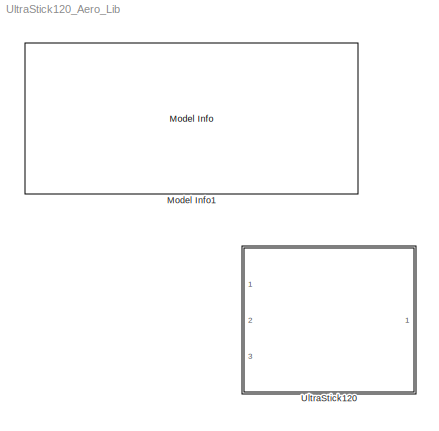
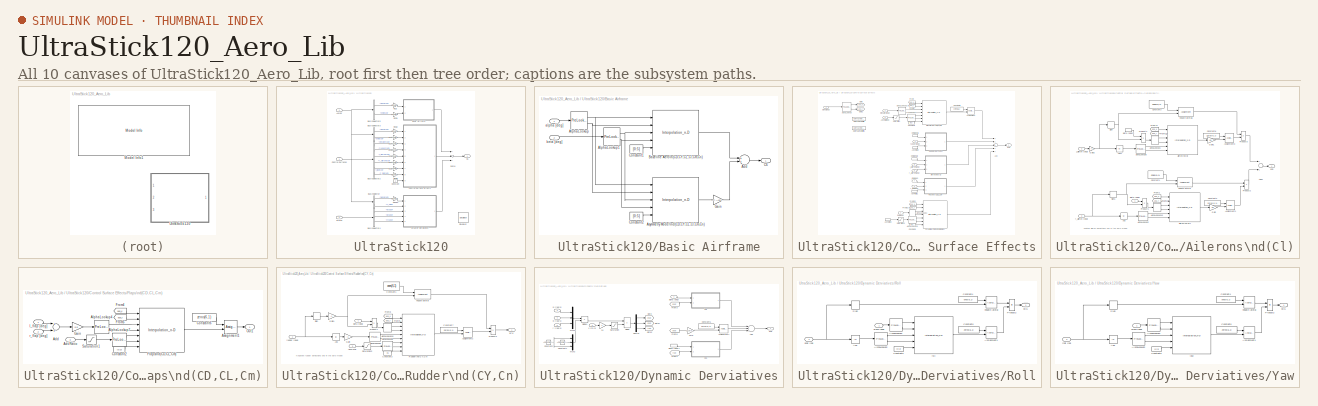
[diagram: thumbnail index - all 10 canvases of the model, root first then tree order]
MODEL UltraStick120_Aero_Lib
KIND library
BLOCK [Reference] Model Info1  REF=simulink/Model-Wide\nUtilities/Model Info
  BlockCM = None
  DisplayStringWithTags = MODEL INFORMATION\nFASER Aerodynamic Model Library\n\nUniversity of Minnesota\nAerospace Engineering and Mechanics\nCopyright 2011 Regents of the University of Minnesota. All rights reserved.\n\n== SVN Info ==\nLast modified by %<LastModifiedBy> on %<LastModificationDate>
  Frame = on
  HorizontalTextAlignment = Left
  InitialBlockCM = None
  LeftAlignmentValue = 0.02
  MaskDisplayString = MODEL INFORMATION\\nFASER Aerodynamic Model Library\\n\\nUniversity of Minnesota\\nAerospace Engineering and Mechanics\\nCopyright 2011 Regents of the University of Minnesota. All rights reserved.\\n\\n== SVN Info ==\\nLast modified by hpfifer on 27-Feb-2014 15:03:57
  Ports = []
  SID = 297
  SourceBlock = simulink/Model-Wide\nUtilities/Model Info
  SourceBlockDiagram = UltraStick120_Aero_Lib
  SourceType = CMBlock
  TagMaxNumber = 20
BLOCK [SubSystem] UltraStick120
  FunctionWithSeparateData = off
  MaskHideContents = off
  MinAlgLoopOccurrences = off
  Opaque = off
  Ports = [3, 1]
  PropExecContextOutsideSubsystem = off
  RTWSystemCode = Auto
  RequestExecContextInheritance = off
  SID = 170
BLOCK [Inport] UltraStick120/AuxVar
  IconDisplay = Port number
  Port = 3
  SID = 443
BLOCK [SubSystem] UltraStick120/Basic Airframe
  FunctionWithSeparateData = off
  MaskHideContents = off
  MinAlgLoopOccurrences = off
  Opaque = off
  Ports = [2, 1]
  PropExecContextOutsideSubsystem = off
  RTWSystemCode = Auto
  RequestExecContextInheritance = off
  SID = 173
BLOCK [Sum] UltraStick120/Basic Airframe/Add
  InputSameDT = off
  OutDataTypeStr = Inherit: Inherit via internal rule
  Ports = [2, 1]
  SID = 437
  SaturateOnIntegerOverflow = off
BLOCK [PreLookup] UltraStick120/Basic Airframe/AlphaLookup
  BeginIndexSearchUsingPreviousIndexResult = on
  BreakpointsData = AC.Aero.C6_bas.alpha
  ExtrapMethod = Linear
  IndexSearchMethod = Linear search
  InputPortMap = u0
  Ports = [1, 2]
  SID = 176
BLOCK [PreLookup] UltraStick120/Basic Airframe/AlphaLookup1
  BeginIndexSearchUsingPreviousIndexResult = on
  BreakpointsData = AC.Aero.C6_bas.beta
  ExtrapMethod = Linear
  IndexSearchMethod = Linear search
  InputPortMap = u0
  Ports = [1, 2]
  SID = 177
BLOCK [Interpolation_n-D] UltraStick120/Basic Airframe/Asymmetry Model\nd(CD,CY,CL,Cl,Cm,Cn)
  InputPortMap = u0,u1,u2,u3,u4
  NumSelectionDims = 1
  NumberOfTableDimensions = 3
  Ports = [5, 1]
  SID = 435
  Table = AC.Aero.dC6_asym.data
BLOCK [Interpolation_n-D] UltraStick120/Basic Airframe/Baseline Aero\n(CD,CY,CL,Cl,Cm,Cn)
  InputPortMap = u0,u1,u2,u3,u4
  NumSelectionDims = 1
  NumberOfTableDimensions = 3
  Ports = [5, 1]
  SID = 179
  Table = AC.Aero.C6_bas.data
BLOCK [Outport] UltraStick120/Basic Airframe/C6
  IconDisplay = Port number
  SID = 180
BLOCK [Constant] UltraStick120/Basic Airframe/Constant1
  OutDataTypeStr = uint32
  SID = 178
  Value = [0:5]
BLOCK [Constant] UltraStick120/Basic Airframe/Constant2
  OutDataTypeStr = uint32
  SID = 436
  Value = [0:5]
BLOCK [Gain] UltraStick120/Basic Airframe/Gain
  Gain = AC.Aero.AsymmetryOn
  OutDataTypeStr = Inherit: Inherit via internal rule
  ParamDataTypeStr = Inherit: Inherit via internal rule
  SID = 438
  SaturateOnIntegerOverflow = off
BLOCK [Inport] UltraStick120/Basic Airframe/alpha [deg]
  IconDisplay = Port number
  SID = 174
BLOCK [Inport] UltraStick120/Basic Airframe/beta [deg]
  IconDisplay = Port number
  Port = 2
  SID = 175
BLOCK [BusSelector] UltraStick120/Bus\nSelector
  OutputSignals = WindAxesParam.alpha [rad],WindAxesParam.V_s [m/s]
  Ports = [1, 2]
  SID = 442
BLOCK [BusSelector] UltraStick120/Bus\nSelector2
  OutputSignals = elevator [rad],rudder [rad],l_aileron [rad],r_aileron [rad],l_flap [rad],r_flap [rad]
  Ports = [1, 6]
  SID = 182
BLOCK [BusSelector] UltraStick120/Bus\nSelector3
  OutputSignals = WindAxesParam.alpha [rad],WindAxesParam.beta [rad]
  Ports = [1, 2]
  SID = 183
BLOCK [BusSelector] UltraStick120/Bus\nSelector4
  OutputSignals = AngVel [rad/s].p [rad/s],AngVel [rad/s].q [rad/s],AngVel [rad/s].r [rad/s]
  Ports = [1, 3]
  SID = 184
BLOCK [BusSelector] UltraStick120/Bus\nSelector5
  OutputSignals = WindAxesParam.alpha [rad],WindAxesParam.beta [rad]
  Ports = [1, 2]
  SID = 441
BLOCK [Outport] UltraStick120/C6
  IconDisplay = Port number
  SID = 295
BLOCK [Constant] UltraStick120/Constant
  SID = 185
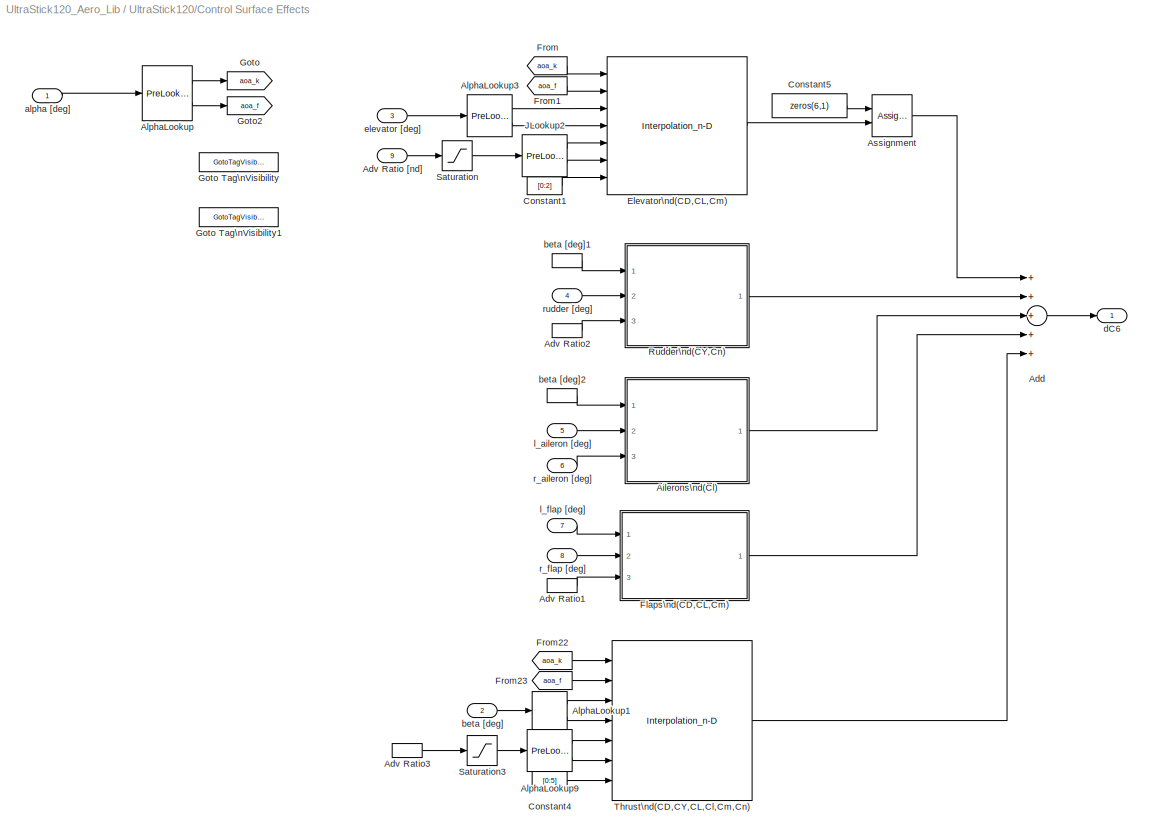
BLOCK [SubSystem] UltraStick120/Control Surface Effects
  FunctionWithSeparateData = off
  MaskHideContents = off
  MinAlgLoopOccurrences = off
  Opaque = off
  Ports = [9, 1]
  PropExecContextOutsideSubsystem = off
  RTWSystemCode = Auto
  RequestExecContextInheritance = off
  SID = 186
BLOCK [Sum] UltraStick120/Control Surface Effects/Add
  InputSameDT = off
  Inputs = +++++
  OutDataTypeStr = Inherit: Inherit via internal rule
  Ports = [5, 1]
  SID = 194
  SaturateOnIntegerOverflow = off
BLOCK [Inport] UltraStick120/Control Surface Effects/Adv Ratio [nd]
  IconDisplay = Port number
  Port = 9
  SID = 193
BLOCK [InportShadow] UltraStick120/Control Surface Effects/Adv Ratio1
  IconDisplay = Port number
  LatchByDelayingOutsideSignal = off
  LatchInputForFeedbackSignals = off
  Port = 9
  SID = 195
BLOCK [InportShadow] UltraStick120/Control Surface Effects/Adv Ratio2
  IconDisplay = Port number
  LatchByDelayingOutsideSignal = off
  LatchInputForFeedbackSignals = off
  Port = 9
  SID = 196
BLOCK [InportShadow] UltraStick120/Control Surface Effects/Adv Ratio3
  IconDisplay = Port number
  LatchByDelayingOutsideSignal = off
  LatchInputForFeedbackSignals = off
  Port = 9
  SID = 197
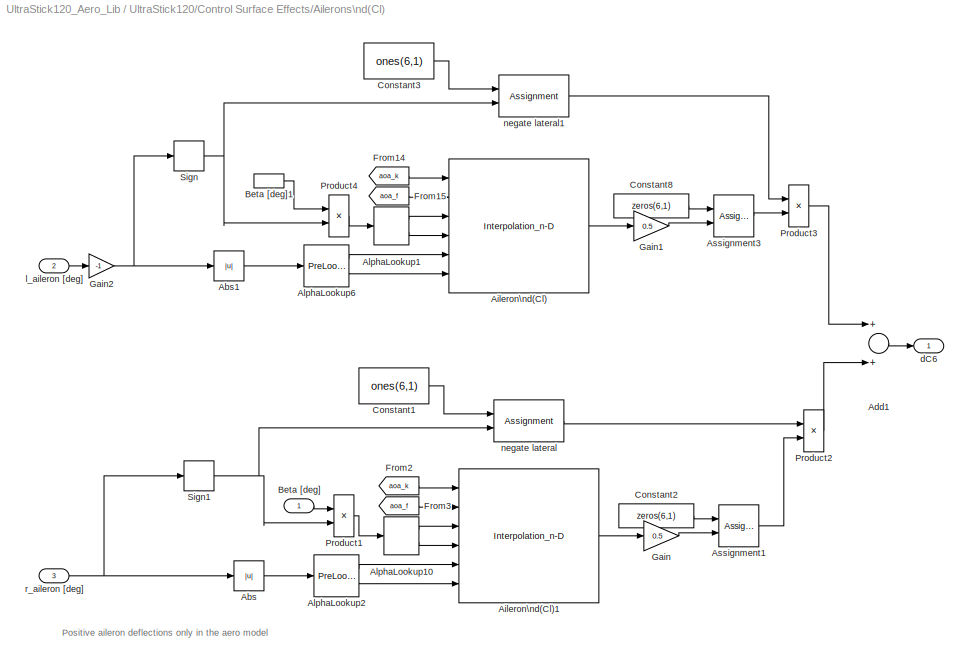
BLOCK [SubSystem] UltraStick120/Control Surface Effects/Ailerons\nd(Cl)
  FunctionWithSeparateData = off
  MaskHideContents = off
  MinAlgLoopOccurrences = off
  Opaque = off
  Ports = [3, 1]
  PropExecContextOutsideSubsystem = off
  RTWSystemCode = Auto
  RequestExecContextInheritance = off
  SID = 330
BLOCK [Abs] UltraStick120/Control Surface Effects/Ailerons\nd(Cl)/Abs
  SID = 334
  SaturateOnIntegerOverflow = off
BLOCK [Abs] UltraStick120/Control Surface Effects/Ailerons\nd(Cl)/Abs1
  SID = 359
  SaturateOnIntegerOverflow = off
BLOCK [Sum] UltraStick120/Control Surface Effects/Ailerons\nd(Cl)/Add1
  InputSameDT = off
  OutDataTypeStr = Inherit: Inherit via internal rule
  Ports = [2, 1]
  SID = 326
  SaturateOnIntegerOverflow = off
BLOCK [Interpolation_n-D] UltraStick120/Control Surface Effects/Ailerons\nd(Cl)/Aileron\nd(Cl)
  InputPortMap = u0,u1,u2,u3,u4,u5
  NumberOfTableDimensions = 3
  Ports = [6, 1]
  SID = 198
  Table = AC.Aero.dC1_ail.data
BLOCK [Interpolation_n-D] UltraStick120/Control Surface Effects/Ailerons\nd(Cl)/Aileron\nd(Cl)1
  InputPortMap = u0,u1,u2,u3,u4,u5
  NumberOfTableDimensions = 3
  Ports = [6, 1]
  SID = 302
  Table = AC.Aero.dC1_ail.data
BLOCK [PreLookup] UltraStick120/Control Surface Effects/Ailerons\nd(Cl)/AlphaLookup1
  BeginIndexSearchUsingPreviousIndexResult = on
  BreakpointsData = AC.Aero.dC1_ail.beta
  ExtrapMethod = Linear
  IndexSearchMethod = Linear search
  InputPortMap = u0
  Ports = [1, 2]
  SID = 360
  UseLastBreakpoint = on
BLOCK [PreLookup] UltraStick120/Control Surface Effects/Ailerons\nd(Cl)/AlphaLookup10
  BeginIndexSearchUsingPreviousIndexResult = on
  BreakpointsData = AC.Aero.dC1_ail.beta
  ExtrapMethod = Linear
  IndexSearchMethod = Linear search
  InputPortMap = u0
  Ports = [1, 2]
  SID = 342
  UseLastBreakpoint = on
BLOCK [PreLookup] UltraStick120/Control Surface Effects/Ailerons\nd(Cl)/AlphaLookup2
  BeginIndexSearchUsingPreviousIndexResult = on
  BreakpointsData = AC.Aero.dC1_ail.ail
  ExtrapMethod = Linear
  IndexSearchMethod = Linear search
  InputPortMap = u0
  Ports = [1, 2]
  SID = 303
BLOCK [PreLookup] UltraStick120/Control Surface Effects/Ailerons\nd(Cl)/AlphaLookup6
  BeginIndexSearchUsingPreviousIndexResult = on
  BreakpointsData = AC.Aero.dC1_ail.ail
  ExtrapMethod = Linear
  IndexSearchMethod = Linear search
  InputPortMap = u0
  Ports = [1, 2]
  SID = 204
BLOCK [Assignment] UltraStick120/Control Surface Effects/Ailerons\nd(Cl)/Assignment1
  IndexOptions = Index vector (dialog)
  Indices = 4
  OutputSizes = [1 1]
  Ports = [2, 1]
  SID = 347
BLOCK [Assignment] UltraStick120/Control Surface Effects/Ailerons\nd(Cl)/Assignment3
  IndexOptions = Index vector (dialog)
  Indices = 4
  OutputSizes = [1 1]
  Ports = [2, 1]
  SID = 211
BLOCK [Inport] UltraStick120/Control Surface Effects/Ailerons\nd(Cl)/Beta [deg]
  IconDisplay = Port number
  PortDimensions = 1
  SID = 344
BLOCK [InportShadow] UltraStick120/Control Surface Effects/Ailerons\nd(Cl)/Beta [deg]1
  IconDisplay = Port number
  LatchByDelayingOutsideSignal = off
  LatchInputForFeedbackSignals = off
  PortDimensions = 1
  SID = 362
BLOCK [Constant] UltraStick120/Control Surface Effects/Ailerons\nd(Cl)/Constant1
  SID = 345
  Value = ones(6,1)
BLOCK [Constant] UltraStick120/Control Surface Effects/Ailerons\nd(Cl)/Constant2
  SID = 348
  Value = zeros(6,1)
BLOCK [Constant] UltraStick120/Control Surface Effects/Ailerons\nd(Cl)/Constant3
  SID = 354
  Value = ones(6,1)
BLOCK [Constant] UltraStick120/Control Surface Effects/Ailerons\nd(Cl)/Constant8
  SID = 219
  Value = zeros(6,1)
BLOCK [From] UltraStick120/Control Surface Effects/Ailerons\nd(Cl)/From14
  GotoTag = aoa_k
  SID = 226
BLOCK [From] UltraStick120/Control Surface Effects/Ailerons\nd(Cl)/From15
  GotoTag = aoa_f
  SID = 227
BLOCK [From] UltraStick120/Control Surface Effects/Ailerons\nd(Cl)/From2
  GotoTag = aoa_k
  SID = 304
BLOCK [From] UltraStick120/Control Surface Effects/Ailerons\nd(Cl)/From3
  GotoTag = aoa_f
  SID = 305
BLOCK [Gain] UltraStick120/Control Surface Effects/Ailerons\nd(Cl)/Gain
  Gain = 0.5
  OutDataTypeStr = Inherit: Inherit via internal rule
  ParamDataTypeStr = Inherit: Inherit via internal rule
  SID = 350
  SaturateOnIntegerOverflow = off
BLOCK [Gain] UltraStick120/Control Surface Effects/Ailerons\nd(Cl)/Gain1
  Gain = 0.5
  OutDataTypeStr = Inherit: Inherit via internal rule
  ParamDataTypeStr = Inherit: Inherit via internal rule
  SID = 351
  SaturateOnIntegerOverflow = off
BLOCK [Gain] UltraStick120/Control Surface Effects/Ailerons\nd(Cl)/Gain2
  Gain = -1
  OutDataTypeStr = Inherit: Inherit via internal rule
  ParamDataTypeStr = Inherit: Inherit via internal rule
  SID = 363
  SaturateOnIntegerOverflow = off
BLOCK [Product] UltraStick120/Control Surface Effects/Ailerons\nd(Cl)/Product1
  InputSameDT = off
  OutDataTypeStr = Inherit: Inherit via internal rule
  Ports = [2, 1]
  SID = 343
  SaturateOnIntegerOverflow = off
BLOCK [Product] UltraStick120/Control Surface Effects/Ailerons\nd(Cl)/Product2
  InputSameDT = off
  OutDataTypeStr = Inherit: Inherit via internal rule
  Ports = [2, 1]
  SID = 349
  SaturateOnIntegerOverflow = off
BLOCK [Product] UltraStick120/Control Surface Effects/Ailerons\nd(Cl)/Product3
  InputSameDT = off
  OutDataTypeStr = Inherit: Inherit via internal rule
  Ports = [2, 1]
  SID = 353
  SaturateOnIntegerOverflow = off
BLOCK [Product] UltraStick120/Control Surface Effects/Ailerons\nd(Cl)/Product4
  InputSameDT = off
  OutDataTypeStr = Inherit: Inherit via internal rule
  Ports = [2, 1]
  SID = 361
  SaturateOnIntegerOverflow = off
BLOCK [Signum] UltraStick120/Control Surface Effects/Ailerons\nd(Cl)/Sign
  SID = 426
BLOCK [Signum] UltraStick120/Control Surface Effects/Ailerons\nd(Cl)/Sign1
  SID = 427
BLOCK [Outport] UltraStick120/Control Surface Effects/Ailerons\nd(Cl)/dC6
  IconDisplay = Port number
  SID = 331
BLOCK [Inport] UltraStick120/Control Surface Effects/Ailerons\nd(Cl)/l_aileron [deg]
  IconDisplay = Port number
  Port = 2
  PortDimensions = 1
  SID = 333
BLOCK [Assignment] UltraStick120/Control Surface Effects/Ailerons\nd(Cl)/negate lateral
  IndexMode = Zero-based
  IndexOptions = Index vector (dialog)
  Indices = [1 3 5]
  OutputSizes = [1 1]
  Ports = [2, 1]
  SID = 346
BLOCK [Assignment] UltraStick120/Control Surface Effects/Ailerons\nd(Cl)/negate lateral1
  IndexMode = Zero-based
  IndexOptions = Index vector (dialog)
  Indices = [1 3 5]
  OutputSizes = [1 1]
  Ports = [2, 1]
  SID = 355
BLOCK [Inport] UltraStick120/Control Surface Effects/Ailerons\nd(Cl)/r_aileron [deg]
  IconDisplay = Port number
  Port = 3
  PortDimensions = 1
  SID = 332
BLOCK [PreLookup] UltraStick120/Control Surface Effects/AlphaLookup
  BeginIndexSearchUsingPreviousIndexResult = on
  BreakpointsData = AC.Aero.C6_bas.alpha
  ExtrapMethod = Linear
  IndexSearchMethod = Linear search
  InputPortMap = u0
  Ports = [1, 2]
  SID = 199
  UseLastBreakpoint = on
BLOCK [PreLookup] UltraStick120/Control Surface Effects/AlphaLookup1
  BeginIndexSearchUsingPreviousIndexResult = on
  BreakpointsData = AC.Aero.C6_bas.beta
  ExtrapMethod = Linear
  IndexSearchMethod = Linear search
  InputPortMap = u0
  Ports = [1, 2]
  SID = 200
  UseLastBreakpoint = on
BLOCK [PreLookup] UltraStick120/Control Surface Effects/AlphaLookup3
  BeginIndexSearchUsingPreviousIndexResult = on
  BreakpointsData = AC.Aero.dC3_ele.ele
  ExtrapMethod = Linear
  IndexSearchMethod = Linear search
  InputPortMap = u0
  Ports = [1, 2]
  SID = 201
  UseLastBreakpoint = on
BLOCK [PreLookup] UltraStick120/Control Surface Effects/AlphaLookup9
  BeginIndexSearchUsingPreviousIndexResult = on
  BreakpointsData = AC.Aero.dC6_pow.J
  ExtrapMethod = Linear
  IndexSearchMethod = Linear search
  InputPortMap = u0
  Ports = [1, 2]
  SID = 207
  UseLastBreakpoint = on
BLOCK [Assignment] UltraStick120/Control Surface Effects/Assignment
  IndexOptions = Index vector (dialog)
  Indices = [1 3 5]
  OutputSizes = [1 1]
  Ports = [2, 1]
  SID = 208
BLOCK [Constant] UltraStick120/Control Surface Effects/Constant1
  OutDataTypeStr = uint32
  SID = 212
  Value = [0:2]
BLOCK [Constant] UltraStick120/Control Surface Effects/Constant4
  OutDataTypeStr = uint32
  SID = 215
  Value = [0:5]
BLOCK [Constant] UltraStick120/Control Surface Effects/Constant5
  SID = 216
  Value = zeros(6,1)
BLOCK [Interpolation_n-D] UltraStick120/Control Surface Effects/Elevator\nd(CD,CL,Cm)
  InputPortMap = u0,u1,u2,u3,u4,u5,u6
  NumSelectionDims = 1
  NumberOfTableDimensions = 4
  Ports = [7, 1]
  SID = 220
  Table = AC.Aero.dC3_ele.data
BLOCK [SubSystem] UltraStick120/Control Surface Effects/Flaps\nd(CD,CL,Cm)
  FunctionWithSeparateData = off
  MaskHideContents = off
  MinAlgLoopOccurrences = off
  Opaque = off
  Ports = [3, 1]
  PropExecContextOutsideSubsystem = off
  RTWSystemCode = Auto
  RequestExecContextInheritance = off
  SID = 365
BLOCK [Sum] UltraStick120/Control Surface Effects/Flaps\nd(CD,CL,Cm)/Add
  InputSameDT = off
  OutDataTypeStr = Inherit: Inherit via internal rule
  Ports = [2, 1]
  SID = 370
  SaturateOnIntegerOverflow = off
BLOCK [Inport] UltraStick120/Control Surface Effects/Flaps\nd(CD,CL,Cm)/Adv Ratio
  IconDisplay = Port number
  Port = 3
  SID = 369
BLOCK [PreLookup] UltraStick120/Control Surface Effects/Flaps\nd(CD,CL,Cm)/AlphaLookup4
  BeginIndexSearchUsingPreviousIndexResult = on
  BreakpointsData = AC.Aero.dC3_flap.flap
  ExtrapMethod = Linear
  IndexSearchMethod = Linear search
  InputPortMap = u0
  Ports = [1, 2]
  SID = 202
BLOCK [PreLookup] UltraStick120/Control Surface Effects/Flaps\nd(CD,CL,Cm)/AlphaLookup7
  BeginIndexSearchUsingPreviousIndexResult = on
  BreakpointsData = AC.Aero.dC3_flap.J
  ExtrapMethod = Linear
  IndexSearchMethod = Linear search
  InputPortMap = u0
  Ports = [1, 2]
  SID = 205
  UseLastBreakpoint = on
BLOCK [Assignment] UltraStick120/Control Surface Effects/Flaps\nd(CD,CL,Cm)/Assignment1
  IndexOptions = Index vector (dialog)
  Indices = [1 3 5]
  OutputSizes = [1 1]
  Ports = [2, 1]
  SID = 209
BLOCK [Constant] UltraStick120/Control Surface Effects/Flaps\nd(CD,CL,Cm)/Constant2
  OutDataTypeStr = uint32
  SID = 213
  Value = [0:2]
BLOCK [Constant] UltraStick120/Control Surface Effects/Flaps\nd(CD,CL,Cm)/Constant6
  SID = 217
  Value = zeros(6,1)
BLOCK [Interpolation_n-D] UltraStick120/Control Surface Effects/Flaps\nd(CD,CL,Cm)/Flaps\nd(CD,CL,Cm)
  InputPortMap = u0,u1,u2,u3,u4,u5,u6
  NumSelectionDims = 1
  NumberOfTableDimensions = 4
  Ports = [7, 1]
  SID = 221
  Table = AC.Aero.dC3_flap.data
BLOCK [From] UltraStick120/Control Surface Effects/Flaps\nd(CD,CL,Cm)/From4
  GotoTag = aoa_k
  SID = 234
BLOCK [From] UltraStick120/Control Surface Effects/Flaps\nd(CD,CL,Cm)/From5
  GotoTag = aoa_f
  SID = 235
BLOCK [Gain] UltraStick120/Control Surface Effects/Flaps\nd(CD,CL,Cm)/Gain
  Gain = 0.5
  OutDataTypeStr = Inherit: Inherit via internal rule
  ParamDataTypeStr = Inherit: Inherit via internal rule
  SID = 372
  SaturateOnIntegerOverflow = off
BLOCK [Outport] UltraStick120/Control Surface Effects/Flaps\nd(CD,CL,Cm)/Out1
  IconDisplay = Port number
  SID = 368
BLOCK [Saturate] UltraStick120/Control Surface Effects/Flaps\nd(CD,CL,Cm)/Saturation1
  InputPortMap = u0
  LowerLimit = min(AC.Aero.dC3_flap.J)
  Ports = [1, 1]
  SID = 245
  UpperLimit = max(AC.Aero.dC3_flap.J)
BLOCK [Inport] UltraStick120/Control Surface Effects/Flaps\nd(CD,CL,Cm)/l_flap [deg]
  IconDisplay = Port number
  PortDimensions = 1
  SID = 367
BLOCK [Inport] UltraStick120/Control Surface Effects/Flaps\nd(CD,CL,Cm)/r_flap [deg]
  IconDisplay = Port number
  Port = 2
  PortDimensions = 1
  SID = 366
BLOCK [From] UltraStick120/Control Surface Effects/From
  GotoTag = aoa_k
  SID = 222
BLOCK [From] UltraStick120/Control Surface Effects/From1
  GotoTag = aoa_f
  SID = 223
BLOCK [From] UltraStick120/Control Surface Effects/From22
  GotoTag = aoa_k
  SID = 232
BLOCK [From] UltraStick120/Control Surface Effects/From23
  GotoTag = aoa_f
  SID = 233
BLOCK [Goto] UltraStick120/Control Surface Effects/Goto
  GotoTag = aoa_k
  SID = 238
  TagVisibility = scoped
BLOCK [GotoTagVisibility] UltraStick120/Control Surface Effects/Goto Tag\nVisibility
  GotoTag = aoa_k
  SID = 327
BLOCK [GotoTagVisibility] UltraStick120/Control Surface Effects/Goto Tag\nVisibility1
  GotoTag = aoa_f
  SID = 329
BLOCK [Goto] UltraStick120/Control Surface Effects/Goto2
  GotoTag = aoa_f
  SID = 239
  TagVisibility = scoped
BLOCK [PreLookup] UltraStick120/Control Surface Effects/JLookup2
  BeginIndexSearchUsingPreviousIndexResult = on
  BreakpointsData = AC.Aero.dC3_ele.J
  ExtrapMethod = Linear
  IndexSearchMethod = Linear search
  InputPortMap = u0
  Ports = [1, 2]
  SID = 242
  UseLastBreakpoint = on
BLOCK [SubSystem] UltraStick120/Control Surface Effects/Rudder\nd(CY,Cn)
  FunctionWithSeparateData = off
  MaskHideContents = off
  MinAlgLoopOccurrences = off
  Opaque = off
  Ports = [3, 1]
  PropExecContextOutsideSubsystem = off
  RTWSystemCode = Auto
  RequestExecContextInheritance = off
  SID = 318
BLOCK [Abs] UltraStick120/Control Surface Effects/Rudder\nd(CY,Cn)/Abs
  SID = 310
  SaturateOnIntegerOverflow = off
BLOCK [Inport] UltraStick120/Control Surface Effects/Rudder\nd(CY,Cn)/AdvRatio
  IconDisplay = Port number
  Port = 3
  SID = 322
BLOCK [PreLookup] UltraStick120/Control Surface Effects/Rudder\nd(CY,Cn)/AlphaLookup10
  BeginIndexSearchUsingPreviousIndexResult = on
  BreakpointsData = AC.Aero.dC2_rud.beta
  ExtrapMethod = Linear
  IndexSearchMethod = Linear search
  InputPortMap = u0
  Ports = [1, 2]
  SID = 308
  UseLastBreakpoint = on
BLOCK [PreLookup] UltraStick120/Control Surface Effects/Rudder\nd(CY,Cn)/AlphaLookup5
  BeginIndexSearchUsingPreviousIndexResult = on
  BreakpointsData = AC.Aero.dC2_rud.rud
  ExtrapMethod = Linear
  IndexSearchMethod = Linear search
  InputPortMap = u0
  Ports = [1, 2]
  SID = 203
BLOCK [PreLookup] UltraStick120/Control Surface Effects/Rudder\nd(CY,Cn)/AlphaLookup8
  BeginIndexSearchUsingPreviousIndexResult = on
  BreakpointsData = AC.Aero.dC2_rud.J
  ExtrapMethod = Linear
  IndexSearchMethod = Linear search
  InputPortMap = u0
  Ports = [1, 2]
  SID = 206
  UseLastBreakpoint = on
BLOCK [Assignment] UltraStick120/Control Surface Effects/Rudder\nd(CY,Cn)/Assignment2
  IndexOptions = Index vector (dialog)
  Indices = [2 6]
  OutputSizes = [1 1]
  Ports = [2, 1]
  SID = 210
BLOCK [Inport] UltraStick120/Control Surface Effects/Rudder\nd(CY,Cn)/Beta [deg]
  IconDisplay = Port number
  PortDimensions = 1
  SID = 319
BLOCK [Constant] UltraStick120/Control Surface Effects/Rudder\nd(CY,Cn)/Constant1
  SID = 324
  Value = ones(6,1)
BLOCK [Constant] UltraStick120/Control Surface Effects/Rudder\nd(CY,Cn)/Constant3
  OutDataTypeStr = uint32
  SID = 214
  Value = 0:1
BLOCK [Constant] UltraStick120/Control Surface Effects/Rudder\nd(CY,Cn)/Constant7
  SID = 218
  Value = zeros(6,1)
BLOCK [From] UltraStick120/Control Surface Effects/Rudder\nd(CY,Cn)/From8
  GotoTag = aoa_k
  SID = 236
BLOCK [From] UltraStick120/Control Surface Effects/Rudder\nd(CY,Cn)/From9
  GotoTag = aoa_f
  SID = 237
BLOCK [Gain] UltraStick120/Control Surface Effects/Rudder\nd(CY,Cn)/Gain
  Gain = -1
  OutDataTypeStr = Inherit: Inherit via internal rule
  ParamDataTypeStr = Inherit: Inherit via internal rule
  SID = 311
  SaturateOnIntegerOverflow = off
BLOCK [Gain] UltraStick120/Control Surface Effects/Rudder\nd(CY,Cn)/Gain1
  Gain = -1
  OutDataTypeStr = Inherit: Inherit via internal rule
  ParamDataTypeStr = Inherit: Inherit via internal rule
  SID = 425
  SaturateOnIntegerOverflow = off
BLOCK [Product] UltraStick120/Control Surface Effects/Rudder\nd(CY,Cn)/Product1
  InputSameDT = off
  OutDataTypeStr = Inherit: Inherit via internal rule
  Ports = [2, 1]
  SID = 315
  SaturateOnIntegerOverflow = off
BLOCK [Product] UltraStick120/Control Surface Effects/Rudder\nd(CY,Cn)/Product2
  InputSameDT = off
  OutDataTypeStr = Inherit: Inherit via internal rule
  Ports = [2, 1]
  SID = 325
  SaturateOnIntegerOverflow = off
BLOCK [Interpolation_n-D] UltraStick120/Control Surface Effects/Rudder\nd(CY,Cn)/Rudder\nd(CY,Cn)
  InputPortMap = u0,u1,u2,u3,u4,u5,u6,u7,u8
  NumSelectionDims = 1
  NumberOfTableDimensions = 5
  Ports = [9, 1]
  SID = 243
  Table = AC.Aero.dC2_rud.data
BLOCK [Saturate] UltraStick120/Control Surface Effects/Rudder\nd(CY,Cn)/Saturation2
  InputPortMap = u0
  LowerLimit = min(AC.Aero.dC2_rud.J)
  Ports = [1, 1]
  SID = 246
  UpperLimit = max(AC.Aero.dC2_rud.J)
BLOCK [Signum] UltraStick120/Control Surface Effects/Rudder\nd(CY,Cn)/Sign
  SID = 424
BLOCK [Outport] UltraStick120/Control Surface Effects/Rudder\nd(CY,Cn)/dC6
  IconDisplay = Port number
  SID = 320
BLOCK [Assignment] UltraStick120/Control Surface Effects/Rudder\nd(CY,Cn)/negate lateral
  IndexMode = Zero-based
  IndexOptions = Index vector (dialog)
  Indices = [1 3 5]
  OutputSizes = [1 1]
  Ports = [2, 1]
  SID = 323
BLOCK [Inport] UltraStick120/Control Surface Effects/Rudder\nd(CY,Cn)/rudder [deg]
  IconDisplay = Port number
  Port = 2
  PortDimensions = 1
  SID = 321
BLOCK [Saturate] UltraStick120/Control Surface Effects/Saturation
  InputPortMap = u0
  LowerLimit = min(AC.Aero.dC3_ele.J)
  Ports = [1, 1]
  SID = 244
  UpperLimit = max(AC.Aero.dC3_ele.J)
BLOCK [Saturate] UltraStick120/Control Surface Effects/Saturation3
  InputPortMap = u0
  LowerLimit = min(AC.Aero.dC6_pow.J)+eps
  Ports = [1, 1]
  SID = 247
  UpperLimit = max(AC.Aero.dC6_pow.J)+eps
BLOCK [Interpolation_n-D] UltraStick120/Control Surface Effects/Thrust\nd(CD,CY,CL,Cl,Cm,Cn)
  InputPortMap = u0,u1,u2,u3,u4,u5,u6
  NumSelectionDims = 1
  NumberOfTableDimensions = 4
  Ports = [7, 1]
  SID = 248
  Table = AC.Aero.dC6_pow.data
BLOCK [Inport] UltraStick120/Control Surface Effects/alpha [deg]
  IconDisplay = Port number
  SID = 187
BLOCK [Inport] UltraStick120/Control Surface Effects/beta [deg]
  IconDisplay = Port number
  Port = 2
  PortDimensions = 1
  SID = 188
BLOCK [InportShadow] UltraStick120/Control Surface Effects/beta [deg]1
  IconDisplay = Port number
  LatchByDelayingOutsideSignal = off
  LatchInputForFeedbackSignals = off
  Port = 2
  PortDimensions = 1
  SID = 309
BLOCK [InportShadow] UltraStick120/Control Surface Effects/beta [deg]2
  IconDisplay = Port number
  LatchByDelayingOutsideSignal = off
  LatchInputForFeedbackSignals = off
  Port = 2
  PortDimensions = 1
  SID = 364
BLOCK [Outport] UltraStick120/Control Surface Effects/dC6
  IconDisplay = Port number
  PortDimensions = 6
  SID = 249
BLOCK [Inport] UltraStick120/Control Surface Effects/elevator [deg]
  IconDisplay = Port number
  Port = 3
  PortDimensions = 1
  SID = 189
BLOCK [Inport] UltraStick120/Control Surface Effects/l_aileron [deg]
  IconDisplay = Port number
  Port = 5
  PortDimensions = 1
  SID = 299
BLOCK [Inport] UltraStick120/Control Surface Effects/l_flap [deg]
  IconDisplay = Port number
  Port = 7
  PortDimensions = 1
  SID = 298
BLOCK [Inport] UltraStick120/Control Surface Effects/r_aileron [deg]
  IconDisplay = Port number
  Port = 6
  PortDimensions = 1
  SID = 192
BLOCK [Inport] UltraStick120/Control Surface Effects/r_flap [deg]
  IconDisplay = Port number
  Port = 8
  PortDimensions = 1
  SID = 190
BLOCK [Inport] UltraStick120/Control Surface Effects/rudder [deg]
  IconDisplay = Port number
  Port = 4
  PortDimensions = 1
  SID = 191
BLOCK [Inport] UltraStick120/Control Surfaces
  IconDisplay = Port number
  SID = 171
BLOCK [SubSystem] UltraStick120/Dynamic Derviatives
  FunctionWithSeparateData = off
  MaskHideContents = off
  MinAlgLoopOccurrences = off
  Opaque = off
  Ports = [5, 1]
  PropExecContextOutsideSubsystem = off
  RTWSystemCode = Auto
  RequestExecContextInheritance = off
  SID = 250
BLOCK [Gain] UltraStick120/Dynamic Derviatives/2V
  Gain = 2
  OutDataTypeStr = Inherit: Inherit via internal rule
  ParamDataTypeStr = Inherit: Inherit via internal rule
  SID = 255
  SaturateOnIntegerOverflow = off
BLOCK [Sum] UltraStick120/Dynamic Derviatives/Add
  InputSameDT = off
  Inputs = +++
  OutDataTypeStr = Inherit: Inherit via internal rule
  Ports = [3, 1]
  SID = 419
  SaturateOnIntegerOverflow = off
BLOCK [Assignment] UltraStick120/Dynamic Derviatives/Assignment1
  IndexOptions = Index vector (dialog)
  Indices = 5
  OutputSizes = [1 1]
  Ports = [2, 1]
  SID = 414
BLOCK [Gain] UltraStick120/Dynamic Derviatives/Cmq
  Gain = AC.Aero.dampder.Cmq
  OutDataTypeStr = Inherit: Inherit via internal rule
  ParamDataTypeStr = Inherit: Inherit via internal rule
  SID = 262
  SaturateOnIntegerOverflow = off
BLOCK [Constant] UltraStick120/Dynamic Derviatives/Constant1
  SID = 266
  Value = AC.Geometry.c
BLOCK [Constant] UltraStick120/Dynamic Derviatives/Constant2
  SID = 267
  Value = AC.Geometry.b
BLOCK [Constant] UltraStick120/Dynamic Derviatives/Constant5
  SID = 415
  Value = zeros(6,1)
BLOCK [Demux] UltraStick120/Dynamic Derviatives/Demux
  DisplayOption = bar
  Outputs = 3
  Ports = [1, 3]
  SID = 268
BLOCK [Product] UltraStick120/Dynamic Derviatives/Divide
  InputSameDT = off
  Inputs = */
  OutDataTypeStr = Inherit: Inherit via internal rule
  Ports = [2, 1]
  RndMeth = Floor
  SID = 269
  SaturateOnIntegerOverflow = off
BLOCK [Product] UltraStick120/Dynamic Derviatives/Divide1
  InputSameDT = off
  Inputs = **
  OutDataTypeStr = Inherit: Inherit via internal rule
  Ports = [2, 1]
  RndMeth = Floor
  SID = 270
  SaturateOnIntegerOverflow = off
BLOCK [From] UltraStick120/Dynamic Derviatives/From2
  GotoTag = rhat
  SID = 273
BLOCK [From] UltraStick120/Dynamic Derviatives/From3
  GotoTag = phat
  SID = 274
BLOCK [From] UltraStick120/Dynamic Derviatives/From6
  GotoTag = qhat
  SID = 277
BLOCK [Goto] UltraStick120/Dynamic Derviatives/Goto
  GotoTag = phat
  SID = 278
BLOCK [Goto] UltraStick120/Dynamic Derviatives/Goto1
  GotoTag = qhat
  SID = 279
BLOCK [Goto] UltraStick120/Dynamic Derviatives/Goto2
  GotoTag = rhat
  SID = 280
BLOCK [Mux] UltraStick120/Dynamic Derviatives/Mux2
  DisplayOption = bar
  Inputs = 3
  Ports = [3, 1]
  SID = 282
BLOCK [Mux] UltraStick120/Dynamic Derviatives/Mux3
  DisplayOption = bar
  Inputs = 3
  Ports = [3, 1]
  SID = 283
BLOCK [SubSystem] UltraStick120/Dynamic Derviatives/Roll
  FunctionWithSeparateData = off
  MaskHideContents = off
  MinAlgLoopOccurrences = off
  Opaque = off
  Ports = [2, 1]
  PropExecContextOutsideSubsystem = off
  RTWSystemCode = Auto
  RequestExecContextInheritance = off
  SID = 393
BLOCK [Abs] UltraStick120/Dynamic Derviatives/Roll/Abs
  SID = 374
  SaturateOnIntegerOverflow = off
BLOCK [PreLookup] UltraStick120/Dynamic Derviatives/Roll/AlphaLookup1
  BeginIndexSearchUsingPreviousIndexResult = on
  BreakpointsData = AC.Aero.dC3_p.alpha
  ExtrapMethod = Linear
  IndexSearchMethod = Linear search
  InputPortMap = u0
  Ports = [1, 2]
  SID = 392
BLOCK [PreLookup] UltraStick120/Dynamic Derviatives/Roll/AlphaLookup2
  BeginIndexSearchUsingPreviousIndexResult = on
  BreakpointsData = AC.Aero.dC3_p.phat
  ExtrapMethod = Linear
  IndexSearchMethod = Linear search
  InputPortMap = u0
  Ports = [1, 2]
  SID = 377
BLOCK [Assignment] UltraStick120/Dynamic Derviatives/Roll/Assignment1
  IndexOptions = Index vector (dialog)
  Indices = [2 4 6]
  OutputSizes = [1 1]
  Ports = [2, 1]
  SID = 378
BLOCK [Constant] UltraStick120/Dynamic Derviatives/Roll/Constant4
  SID = 380
  Value = ones(6,1)
BLOCK [Constant] UltraStick120/Dynamic Derviatives/Roll/Constant5
  SID = 381
  Value = zeros(6,1)
BLOCK [Constant] UltraStick120/Dynamic Derviatives/Roll/Constant6
  OutDataTypeStr = uint32
  SID = 390
  Value = [0:2]
BLOCK [Product] UltraStick120/Dynamic Derviatives/Roll/Product2
  InputSameDT = off
  OutDataTypeStr = Inherit: Inherit via internal rule
  Ports = [2, 1]
  SID = 387
  SaturateOnIntegerOverflow = off
BLOCK [Signum] UltraStick120/Dynamic Derviatives/Roll/Sign
  SID = 420
BLOCK [Inport] UltraStick120/Dynamic Derviatives/Roll/alpha [deg]
  IconDisplay = Port number
  SID = 395
BLOCK [Outport] UltraStick120/Dynamic Derviatives/Roll/dC6
  IconDisplay = Port number
  SID = 394
BLOCK [Assignment] UltraStick120/Dynamic Derviatives/Roll/negate lateral
  IndexOptions = Index vector (dialog)
  Indices = [2 4 6]
  OutputSizes = [1 1]
  Ports = [2, 1]
  SID = 389
BLOCK [Inport] UltraStick120/Dynamic Derviatives/Roll/phat [nd]
  IconDisplay = Port number
  Port = 2
  SID = 396
BLOCK [Interpolation_n-D] UltraStick120/Dynamic Derviatives/Roll/roll
  InputPortMap = u0,u1,u2,u3,u4
  NumSelectionDims = 1
  NumberOfTableDimensions = 3
  Ports = [5, 1]
  SID = 375
  Table = AC.Aero.dC3_p.data
BLOCK [Saturate] UltraStick120/Dynamic Derviatives/Saturation
  InputPortMap = u0
  LowerLimit = 0.001
  Ports = [1, 1]
  SID = 284
  UpperLimit = Inf
BLOCK [Inport] UltraStick120/Dynamic Derviatives/V [m//s]
  IconDisplay = Port number
  Port = 2
  SID = 251
BLOCK [SubSystem] UltraStick120/Dynamic Derviatives/Yaw
  FunctionWithSeparateData = off
  MaskHideContents = off
  MinAlgLoopOccurrences = off
  Opaque = off
  Ports = [2, 1]
  PropExecContextOutsideSubsystem = off
  RTWSystemCode = Auto
  RequestExecContextInheritance = off
  SID = 397
BLOCK [Abs] UltraStick120/Dynamic Derviatives/Yaw/Abs
  SID = 400
  SaturateOnIntegerOverflow = off
BLOCK [PreLookup] UltraStick120/Dynamic Derviatives/Yaw/AlphaLookup1
  BeginIndexSearchUsingPreviousIndexResult = on
  BreakpointsData = AC.Aero.dC3_r.alpha
  ExtrapMethod = Linear
  IndexSearchMethod = Linear search
  InputPortMap = u0
  Ports = [1, 2]
  SID = 401
BLOCK [PreLookup] UltraStick120/Dynamic Derviatives/Yaw/AlphaLookup2
  BeginIndexSearchUsingPreviousIndexResult = on
  BreakpointsData = AC.Aero.dC3_r.rhat
  ExtrapMethod = Linear
  IndexSearchMethod = Linear search
  InputPortMap = u0
  Ports = [1, 2]
  SID = 402
BLOCK [Assignment] UltraStick120/Dynamic Derviatives/Yaw/Assignment1
  IndexOptions = Index vector (dialog)
  Indices = [2 4 6]
  OutputSizes = [1 1]
  Ports = [2, 1]
  SID = 403
BLOCK [Constant] UltraStick120/Dynamic Derviatives/Yaw/Constant4
  SID = 421
  Value = ones(6,1)
BLOCK [Constant] UltraStick120/Dynamic Derviatives/Yaw/Constant5
  SID = 406
  Value = zeros(6,1)
BLOCK [Constant] UltraStick120/Dynamic Derviatives/Yaw/Constant6
  OutDataTypeStr = uint32
  SID = 407
  Value = [0:2]
BLOCK [Product] UltraStick120/Dynamic Derviatives/Yaw/Product2
  InputSameDT = off
  OutDataTypeStr = Inherit: Inherit via internal rule
  Ports = [2, 1]
  SID = 409
  SaturateOnIntegerOverflow = off
BLOCK [Signum] UltraStick120/Dynamic Derviatives/Yaw/Sign
  SID = 422
BLOCK [Inport] UltraStick120/Dynamic Derviatives/Yaw/alpha [deg]
  IconDisplay = Port number
  SID = 398
BLOCK [Outport] UltraStick120/Dynamic Derviatives/Yaw/dC6
  IconDisplay = Port number
  SID = 413
BLOCK [Assignment] UltraStick120/Dynamic Derviatives/Yaw/negate lateral
  IndexOptions = Index vector (dialog)
  Indices = [2 4 6]
  OutputSizes = [1 1]
  Ports = [2, 1]
  SID = 423
BLOCK [Inport] UltraStick120/Dynamic Derviatives/Yaw/rhat [nd]
  IconDisplay = Port number
  Port = 2
  SID = 399
BLOCK [Interpolation_n-D] UltraStick120/Dynamic Derviatives/Yaw/yaw
  InputPortMap = u0,u1,u2,u3,u4
  NumSelectionDims = 1
  NumberOfTableDimensions = 3
  Ports = [5, 1]
  SID = 412
  Table = AC.Aero.dC3_r.data
BLOCK [Inport] UltraStick120/Dynamic Derviatives/alpha [deg]
  IconDisplay = Port number
  SID = 416
BLOCK [InportShadow] UltraStick120/Dynamic Derviatives/alpha [deg]1
  IconDisplay = Port number
  LatchByDelayingOutsideSignal = off
  LatchInputForFeedbackSignals = off
  SID = 418
BLOCK [Outport] UltraStick120/Dynamic Derviatives/dC6
  IconDisplay = Port number
  SID = 285
BLOCK [Inport] UltraStick120/Dynamic Derviatives/p [rad//s]
  IconDisplay = Port number
  Port = 3
  SID = 252
BLOCK [Inport] UltraStick120/Dynamic Derviatives/q [rad//s]
  IconDisplay = Port number
  Port = 4
  SID = 253
BLOCK [Inport] UltraStick120/Dynamic Derviatives/r [rad//s]
  IconDisplay = Port number
  Port = 5
  SID = 254
BLOCK [Gain] UltraStick120/R2D
  Gain = 180/pi
  OutDataTypeStr = Inherit: Inherit via internal rule
  ParamDataTypeStr = Inherit: Inherit via internal rule
  SID = 286
  SaturateOnIntegerOverflow = off
BLOCK [Gain] UltraStick120/R2D1
  Gain = 180/pi
  OutDataTypeStr = Inherit: Inherit via internal rule
  ParamDataTypeStr = Inherit: Inherit via internal rule
  SID = 287
  SaturateOnIntegerOverflow = off
BLOCK [Gain] UltraStick120/R2D10
  Gain = 180/pi
  OutDataTypeStr = Inherit: Inherit via internal rule
  ParamDataTypeStr = Inherit: Inherit via internal rule
  SID = 417
  SaturateOnIntegerOverflow = off
BLOCK [Gain] UltraStick120/R2D2
  Gain = 180/pi
  OutDataTypeStr = Inherit: Inherit via internal rule
  ParamDataTypeStr = Inherit: Inherit via internal rule
  SID = 288
  SaturateOnIntegerOverflow = off
BLOCK [Gain] UltraStick120/R2D3
  Gain = 180/pi
  OutDataTypeStr = Inherit: Inherit via internal rule
  ParamDataTypeStr = Inherit: Inherit via internal rule
  SID = 289
  SaturateOnIntegerOverflow = off
BLOCK [Gain] UltraStick120/R2D4
  Gain = 180/pi
  OutDataTypeStr = Inherit: Inherit via internal rule
  ParamDataTypeStr = Inherit: Inherit via internal rule
  SID = 290
  SaturateOnIntegerOverflow = off
BLOCK [Gain] UltraStick120/R2D5
  Gain = 180/pi
  OutDataTypeStr = Inherit: Inherit via internal rule
  ParamDataTypeStr = Inherit: Inherit via internal rule
  SID = 291
  SaturateOnIntegerOverflow = off
BLOCK [Gain] UltraStick120/R2D6
  Gain = 180/pi
  OutDataTypeStr = Inherit: Inherit via internal rule
  ParamDataTypeStr = Inherit: Inherit via internal rule
  SID = 292
  SaturateOnIntegerOverflow = off
BLOCK [Gain] UltraStick120/R2D7
  Gain = 180/pi
  OutDataTypeStr = Inherit: Inherit via internal rule
  ParamDataTypeStr = Inherit: Inherit via internal rule
  SID = 293
  SaturateOnIntegerOverflow = off
BLOCK [Gain] UltraStick120/R2D8
  Gain = 180/pi
  OutDataTypeStr = Inherit: Inherit via internal rule
  ParamDataTypeStr = Inherit: Inherit via internal rule
  SID = 300
  SaturateOnIntegerOverflow = off
BLOCK [Gain] UltraStick120/R2D9
  Gain = 180/pi
  OutDataTypeStr = Inherit: Inherit via internal rule
  ParamDataTypeStr = Inherit: Inherit via internal rule
  SID = 301
  SaturateOnIntegerOverflow = off
BLOCK [Reference] UltraStick120/README  REF=simulink/Model-Wide\nUtilities/DocBlock
  DocumentType = Text
  Ports = []
  SID = 296
  SourceBlock = simulink/Model-Wide\nUtilities/DocBlock
  SourceType = DocBlock
  UserData = DataTag0
  UserDataPersistent = on
BLOCK [Inport] UltraStick120/States
  IconDisplay = Port number
  Port = 2
  SID = 172
BLOCK [Sum] UltraStick120/Sum8
  Inputs = +++
  Ports = [3, 1]
  SID = 294
ANNOTATION UltraStick120/Control Surface Effects/Ailerons\nd(Cl): Positive aileron deflections only in the aero model
ANNOTATION UltraStick120/Control Surface Effects/Rudder\nd(CY,Cn): Negative rudder deflections only in the aero model
NET UltraStick120/AuxVar:1 -> UltraStick120/Bus\nSelector3:1, UltraStick120/Bus\nSelector5:1, UltraStick120/Bus\nSelector:1
LINE UltraStick120/Basic Airframe/Add:1 -> UltraStick120/Basic Airframe/C6:1
NET UltraStick120/Basic Airframe/AlphaLookup1:1 -> UltraStick120/Basic Airframe/Asymmetry Model\nd(CD,CY,CL,Cl,Cm,Cn):3, UltraStick120/Basic Airframe/Baseline Aero\n(CD,CY,CL,Cl,Cm,Cn):3
NET UltraStick120/Basic Airframe/AlphaLookup1:2 -> UltraStick120/Basic Airframe/Asymmetry Model\nd(CD,CY,CL,Cl,Cm,Cn):4, UltraStick120/Basic Airframe/Baseline Aero\n(CD,CY,CL,Cl,Cm,Cn):4
NET UltraStick120/Basic Airframe/AlphaLookup:1 -> UltraStick120/Basic Airframe/Asymmetry Model\nd(CD,CY,CL,Cl,Cm,Cn):1, UltraStick120/Basic Airframe/Baseline Aero\n(CD,CY,CL,Cl,Cm,Cn):1
NET UltraStick120/Basic Airframe/AlphaLookup:2 -> UltraStick120/Basic Airframe/Asymmetry Model\nd(CD,CY,CL,Cl,Cm,Cn):2, UltraStick120/Basic Airframe/Baseline Aero\n(CD,CY,CL,Cl,Cm,Cn):2
LINE UltraStick120/Basic Airframe/Asymmetry Model\nd(CD,CY,CL,Cl,Cm,Cn):1 -> UltraStick120/Basic Airframe/Gain:1
LINE UltraStick120/Basic Airframe/Baseline Aero\n(CD,CY,CL,Cl,Cm,Cn):1 -> UltraStick120/Basic Airframe/Add:1
LINE UltraStick120/Basic Airframe/Constant1:1 -> UltraStick120/Basic Airframe/Baseline Aero\n(CD,CY,CL,Cl,Cm,Cn):5
LINE UltraStick120/Basic Airframe/Constant2:1 -> UltraStick120/Basic Airframe/Asymmetry Model\nd(CD,CY,CL,Cl,Cm,Cn):5
LINE UltraStick120/Basic Airframe/Gain:1 -> UltraStick120/Basic Airframe/Add:2
LINE UltraStick120/Basic Airframe/alpha [deg]:1 -> UltraStick120/Basic Airframe/AlphaLookup:1
LINE UltraStick120/Basic Airframe/beta [deg]:1 -> UltraStick120/Basic Airframe/AlphaLookup1:1
LINE UltraStick120/Basic Airframe:1 -> UltraStick120/Sum8:1
LINE UltraStick120/Bus\nSelector2:1 -> UltraStick120/R2D4:1
LINE UltraStick120/Bus\nSelector2:2 -> UltraStick120/R2D5:1
LINE UltraStick120/Bus\nSelector2:3 -> UltraStick120/R2D6:1
LINE UltraStick120/Bus\nSelector2:4 -> UltraStick120/R2D7:1
LINE UltraStick120/Bus\nSelector2:5 -> UltraStick120/R2D8:1
LINE UltraStick120/Bus\nSelector2:6 -> UltraStick120/R2D9:1
LINE UltraStick120/Bus\nSelector3:1 -> UltraStick120/R2D2:1
LINE UltraStick120/Bus\nSelector3:2 -> UltraStick120/R2D3:1
LINE UltraStick120/Bus\nSelector4:1 -> UltraStick120/Dynamic Derviatives:3
LINE UltraStick120/Bus\nSelector4:2 -> UltraStick120/Dynamic Derviatives:4
LINE UltraStick120/Bus\nSelector4:3 -> UltraStick120/Dynamic Derviatives:5
LINE UltraStick120/Bus\nSelector5:1 -> UltraStick120/R2D:1
LINE UltraStick120/Bus\nSelector5:2 -> UltraStick120/R2D1:1
LINE UltraStick120/Bus\nSelector:1 -> UltraStick120/R2D10:1
LINE UltraStick120/Bus\nSelector:2 -> UltraStick120/Dynamic Derviatives:2
LINE UltraStick120/Constant:1 -> UltraStick120/Control Surface Effects:9
LINE UltraStick120/Control Surface Effects/Add:1 -> UltraStick120/Control Surface Effects/dC6:1
LINE UltraStick120/Control Surface Effects/Adv Ratio [nd]:1 -> UltraStick120/Control Surface Effects/Saturation:1
LINE UltraStick120/Control Surface Effects/Adv Ratio1:1 -> UltraStick120/Control Surface Effects/Flaps\nd(CD,CL,Cm):3
LINE UltraStick120/Control Surface Effects/Adv Ratio2:1 -> UltraStick120/Control Surface Effects/Rudder\nd(CY,Cn):3
LINE UltraStick120/Control Surface Effects/Adv Ratio3:1 -> UltraStick120/Control Surface Effects/Saturation3:1
LINE UltraStick120/Control Surface Effects/Ailerons\nd(Cl)/Abs1:1 -> UltraStick120/Control Surface Effects/Ailerons\nd(Cl)/AlphaLookup6:1
LINE UltraStick120/Control Surface Effects/Ailerons\nd(Cl)/Abs:1 -> UltraStick120/Control Surface Effects/Ailerons\nd(Cl)/AlphaLookup2:1
LINE UltraStick120/Control Surface Effects/Ailerons\nd(Cl)/Add1:1 -> UltraStick120/Control Surface Effects/Ailerons\nd(Cl)/dC6:1
LINE UltraStick120/Control Surface Effects/Ailerons\nd(Cl)/Aileron\nd(Cl)1:1 -> UltraStick120/Control Surface Effects/Ailerons\nd(Cl)/Gain:1
LINE UltraStick120/Control Surface Effects/Ailerons\nd(Cl)/Aileron\nd(Cl):1 -> UltraStick120/Control Surface Effects/Ailerons\nd(Cl)/Gain1:1
LINE UltraStick120/Control Surface Effects/Ailerons\nd(Cl)/AlphaLookup10:1 -> UltraStick120/Control Surface Effects/Ailerons\nd(Cl)/Aileron\nd(Cl)1:3
LINE UltraStick120/Control Surface Effects/Ailerons\nd(Cl)/AlphaLookup10:2 -> UltraStick120/Control Surface Effects/Ailerons\nd(Cl)/Aileron\nd(Cl)1:4
LINE UltraStick120/Control Surface Effects/Ailerons\nd(Cl)/AlphaLookup1:1 -> UltraStick120/Control Surface Effects/Ailerons\nd(Cl)/Aileron\nd(Cl):3
LINE UltraStick120/Control Surface Effects/Ailerons\nd(Cl)/AlphaLookup1:2 -> UltraStick120/Control Surface Effects/Ailerons\nd(Cl)/Aileron\nd(Cl):4
LINE UltraStick120/Control Surface Effects/Ailerons\nd(Cl)/AlphaLookup2:1 -> UltraStick120/Control Surface Effects/Ailerons\nd(Cl)/Aileron\nd(Cl)1:5
LINE UltraStick120/Control Surface Effects/Ailerons\nd(Cl)/AlphaLookup2:2 -> UltraStick120/Control Surface Effects/Ailerons\nd(Cl)/Aileron\nd(Cl)1:6
LINE UltraStick120/Control Surface Effects/Ailerons\nd(Cl)/AlphaLookup6:1 -> UltraStick120/Control Surface Effects/Ailerons\nd(Cl)/Aileron\nd(Cl):5
LINE UltraStick120/Control Surface Effects/Ailerons\nd(Cl)/AlphaLookup6:2 -> UltraStick120/Control Surface Effects/Ailerons\nd(Cl)/Aileron\nd(Cl):6
LINE UltraStick120/Control Surface Effects/Ailerons\nd(Cl)/Assignment1:1 -> UltraStick120/Control Surface Effects/Ailerons\nd(Cl)/Product2:2
LINE UltraStick120/Control Surface Effects/Ailerons\nd(Cl)/Assignment3:1 -> UltraStick120/Control Surface Effects/Ailerons\nd(Cl)/Product3:2
LINE UltraStick120/Control Surface Effects/Ailerons\nd(Cl)/Beta [deg]1:1 -> UltraStick120/Control Surface Effects/Ailerons\nd(Cl)/Product4:1
LINE UltraStick120/Control Surface Effects/Ailerons\nd(Cl)/Beta [deg]:1 -> UltraStick120/Control Surface Effects/Ailerons\nd(Cl)/Product1:1
LINE UltraStick120/Control Surface Effects/Ailerons\nd(Cl)/Constant1:1 -> UltraStick120/Control Surface Effects/Ailerons\nd(Cl)/negate lateral:1
LINE UltraStick120/Control Surface Effects/Ailerons\nd(Cl)/Constant2:1 -> UltraStick120/Control Surface Effects/Ailerons\nd(Cl)/Assignment1:1
LINE UltraStick120/Control Surface Effects/Ailerons\nd(Cl)/Constant3:1 -> UltraStick120/Control Surface Effects/Ailerons\nd(Cl)/negate lateral1:1
LINE UltraStick120/Control Surface Effects/Ailerons\nd(Cl)/Constant8:1 -> UltraStick120/Control Surface Effects/Ailerons\nd(Cl)/Assignment3:1
LINE UltraStick120/Control Surface Effects/Ailerons\nd(Cl)/From14:1 -> UltraStick120/Control Surface Effects/Ailerons\nd(Cl)/Aileron\nd(Cl):1
LINE UltraStick120/Control Surface Effects/Ailerons\nd(Cl)/From15:1 -> UltraStick120/Control Surface Effects/Ailerons\nd(Cl)/Aileron\nd(Cl):2
LINE UltraStick120/Control Surface Effects/Ailerons\nd(Cl)/From2:1 -> UltraStick120/Control Surface Effects/Ailerons\nd(Cl)/Aileron\nd(Cl)1:1
LINE UltraStick120/Control Surface Effects/Ailerons\nd(Cl)/From3:1 -> UltraStick120/Control Surface Effects/Ailerons\nd(Cl)/Aileron\nd(Cl)1:2
LINE UltraStick120/Control Surface Effects/Ailerons\nd(Cl)/Gain1:1 -> UltraStick120/Control Surface Effects/Ailerons\nd(Cl)/Assignment3:2
NET UltraStick120/Control Surface Effects/Ailerons\nd(Cl)/Gain2:1 -> UltraStick120/Control Surface Effects/Ailerons\nd(Cl)/Abs1:1, UltraStick120/Control Surface Effects/Ailerons\nd(Cl)/Sign:1
LINE UltraStick120/Control Surface Effects/Ailerons\nd(Cl)/Gain:1 -> UltraStick120/Control Surface Effects/Ailerons\nd(Cl)/Assignment1:2
LINE UltraStick120/Control Surface Effects/Ailerons\nd(Cl)/Product1:1 -> UltraStick120/Control Surface Effects/Ailerons\nd(Cl)/AlphaLookup10:1
LINE UltraStick120/Control Surface Effects/Ailerons\nd(Cl)/Product2:1 -> UltraStick120/Control Surface Effects/Ailerons\nd(Cl)/Add1:2
LINE UltraStick120/Control Surface Effects/Ailerons\nd(Cl)/Product3:1 -> UltraStick120/Control Surface Effects/Ailerons\nd(Cl)/Add1:1
LINE UltraStick120/Control Surface Effects/Ailerons\nd(Cl)/Product4:1 -> UltraStick120/Control Surface Effects/Ailerons\nd(Cl)/AlphaLookup1:1
NET UltraStick120/Control Surface Effects/Ailerons\nd(Cl)/Sign1:1 -> UltraStick120/Control Surface Effects/Ailerons\nd(Cl)/Product1:2, UltraStick120/Control Surface Effects/Ailerons\nd(Cl)/negate lateral:2
NET UltraStick120/Control Surface Effects/Ailerons\nd(Cl)/Sign:1 -> UltraStick120/Control Surface Effects/Ailerons\nd(Cl)/Product4:2, UltraStick120/Control Surface Effects/Ailerons\nd(Cl)/negate lateral1:2
LINE UltraStick120/Control Surface Effects/Ailerons\nd(Cl)/l_aileron [deg]:1 -> UltraStick120/Control Surface Effects/Ailerons\nd(Cl)/Gain2:1
LINE UltraStick120/Control Surface Effects/Ailerons\nd(Cl)/negate lateral1:1 -> UltraStick120/Control Surface Effects/Ailerons\nd(Cl)/Product3:1
LINE UltraStick120/Control Surface Effects/Ailerons\nd(Cl)/negate lateral:1 -> UltraStick120/Control Surface Effects/Ailerons\nd(Cl)/Product2:1
NET UltraStick120/Control Surface Effects/Ailerons\nd(Cl)/r_aileron [deg]:1 -> UltraStick120/Control Surface Effects/Ailerons\nd(Cl)/Abs:1, UltraStick120/Control Surface Effects/Ailerons\nd(Cl)/Sign1:1
LINE UltraStick120/Control Surface Effects/Ailerons\nd(Cl):1 -> UltraStick120/Control Surface Effects/Add:3
LINE UltraStick120/Control Surface Effects/AlphaLookup1:1 -> UltraStick120/Control Surface Effects/Thrust\nd(CD,CY,CL,Cl,Cm,Cn):3
LINE UltraStick120/Control Surface Effects/AlphaLookup1:2 -> UltraStick120/Control Surface Effects/Thrust\nd(CD,CY,CL,Cl,Cm,Cn):4
LINE UltraStick120/Control Surface Effects/AlphaLookup3:1 -> UltraStick120/Control Surface Effects/Elevator\nd(CD,CL,Cm):3
LINE UltraStick120/Control Surface Effects/AlphaLookup3:2 -> UltraStick120/Control Surface Effects/Elevator\nd(CD,CL,Cm):4
LINE UltraStick120/Control Surface Effects/AlphaLookup9:1 -> UltraStick120/Control Surface Effects/Thrust\nd(CD,CY,CL,Cl,Cm,Cn):5
LINE UltraStick120/Control Surface Effects/AlphaLookup9:2 -> UltraStick120/Control Surface Effects/Thrust\nd(CD,CY,CL,Cl,Cm,Cn):6
LINE UltraStick120/Control Surface Effects/AlphaLookup:1 -> UltraStick120/Control Surface Effects/Goto:1
LINE UltraStick120/Control Surface Effects/AlphaLookup:2 -> UltraStick120/Control Surface Effects/Goto2:1
LINE UltraStick120/Control Surface Effects/Assignment:1 -> UltraStick120/Control Surface Effects/Add:1
LINE UltraStick120/Control Surface Effects/Constant1:1 -> UltraStick120/Control Surface Effects/Elevator\nd(CD,CL,Cm):7
LINE UltraStick120/Control Surface Effects/Constant4:1 -> UltraStick120/Control Surface Effects/Thrust\nd(CD,CY,CL,Cl,Cm,Cn):7
LINE UltraStick120/Control Surface Effects/Constant5:1 -> UltraStick120/Control Surface Effects/Assignment:1
LINE UltraStick120/Control Surface Effects/Elevator\nd(CD,CL,Cm):1 -> UltraStick120/Control Surface Effects/Assignment:2
LINE UltraStick120/Control Surface Effects/Flaps\nd(CD,CL,Cm)/Add:1 -> UltraStick120/Control Surface Effects/Flaps\nd(CD,CL,Cm)/Gain:1
LINE UltraStick120/Control Surface Effects/Flaps\nd(CD,CL,Cm)/Adv Ratio:1 -> UltraStick120/Control Surface Effects/Flaps\nd(CD,CL,Cm)/Saturation1:1
LINE UltraStick120/Control Surface Effects/Flaps\nd(CD,CL,Cm)/AlphaLookup4:1 -> UltraStick120/Control Surface Effects/Flaps\nd(CD,CL,Cm)/Flaps\nd(CD,CL,Cm):3
LINE UltraStick120/Control Surface Effects/Flaps\nd(CD,CL,Cm)/AlphaLookup4:2 -> UltraStick120/Control Surface Effects/Flaps\nd(CD,CL,Cm)/Flaps\nd(CD,CL,Cm):4
LINE UltraStick120/Control Surface Effects/Flaps\nd(CD,CL,Cm)/AlphaLookup7:1 -> UltraStick120/Control Surface Effects/Flaps\nd(CD,CL,Cm)/Flaps\nd(CD,CL,Cm):5
LINE UltraStick120/Control Surface Effects/Flaps\nd(CD,CL,Cm)/AlphaLookup7:2 -> UltraStick120/Control Surface Effects/Flaps\nd(CD,CL,Cm)/Flaps\nd(CD,CL,Cm):6
LINE UltraStick120/Control Surface Effects/Flaps\nd(CD,CL,Cm)/Assignment1:1 -> UltraStick120/Control Surface Effects/Flaps\nd(CD,CL,Cm)/Out1:1
LINE UltraStick120/Control Surface Effects/Flaps\nd(CD,CL,Cm)/Constant2:1 -> UltraStick120/Control Surface Effects/Flaps\nd(CD,CL,Cm)/Flaps\nd(CD,CL,Cm):7
LINE UltraStick120/Control Surface Effects/Flaps\nd(CD,CL,Cm)/Constant6:1 -> UltraStick120/Control Surface Effects/Flaps\nd(CD,CL,Cm)/Assignment1:1
LINE UltraStick120/Control Surface Effects/Flaps\nd(CD,CL,Cm)/Flaps\nd(CD,CL,Cm):1 -> UltraStick120/Control Surface Effects/Flaps\nd(CD,CL,Cm)/Assignment1:2
LINE UltraStick120/Control Surface Effects/Flaps\nd(CD,CL,Cm)/From4:1 -> UltraStick120/Control Surface Effects/Flaps\nd(CD,CL,Cm)/Flaps\nd(CD,CL,Cm):1
LINE UltraStick120/Control Surface Effects/Flaps\nd(CD,CL,Cm)/From5:1 -> UltraStick120/Control Surface Effects/Flaps\nd(CD,CL,Cm)/Flaps\nd(CD,CL,Cm):2
LINE UltraStick120/Control Surface Effects/Flaps\nd(CD,CL,Cm)/Gain:1 -> UltraStick120/Control Surface Effects/Flaps\nd(CD,CL,Cm)/AlphaLookup4:1
LINE UltraStick120/Control Surface Effects/Flaps\nd(CD,CL,Cm)/Saturation1:1 -> UltraStick120/Control Surface Effects/Flaps\nd(CD,CL,Cm)/AlphaLookup7:1
LINE UltraStick120/Control Surface Effects/Flaps\nd(CD,CL,Cm)/l_flap [deg]:1 -> UltraStick120/Control Surface Effects/Flaps\nd(CD,CL,Cm)/Add:1
LINE UltraStick120/Control Surface Effects/Flaps\nd(CD,CL,Cm)/r_flap [deg]:1 -> UltraStick120/Control Surface Effects/Flaps\nd(CD,CL,Cm)/Add:2
LINE UltraStick120/Control Surface Effects/Flaps\nd(CD,CL,Cm):1 -> UltraStick120/Control Surface Effects/Add:4
LINE UltraStick120/Control Surface Effects/From1:1 -> UltraStick120/Control Surface Effects/Elevator\nd(CD,CL,Cm):2
LINE UltraStick120/Control Surface Effects/From22:1 -> UltraStick120/Control Surface Effects/Thrust\nd(CD,CY,CL,Cl,Cm,Cn):1
LINE UltraStick120/Control Surface Effects/From23:1 -> UltraStick120/Control Surface Effects/Thrust\nd(CD,CY,CL,Cl,Cm,Cn):2
LINE UltraStick120/Control Surface Effects/From:1 -> UltraStick120/Control Surface Effects/Elevator\nd(CD,CL,Cm):1
LINE UltraStick120/Control Surface Effects/JLookup2:1 -> UltraStick120/Control Surface Effects/Elevator\nd(CD,CL,Cm):5
LINE UltraStick120/Control Surface Effects/JLookup2:2 -> UltraStick120/Control Surface Effects/Elevator\nd(CD,CL,Cm):6
LINE UltraStick120/Control Surface Effects/Rudder\nd(CY,Cn)/Abs:1 -> UltraStick120/Control Surface Effects/Rudder\nd(CY,Cn)/Gain:1
LINE UltraStick120/Control Surface Effects/Rudder\nd(CY,Cn)/AdvRatio:1 -> UltraStick120/Control Surface Effects/Rudder\nd(CY,Cn)/Saturation2:1
LINE UltraStick120/Control Surface Effects/Rudder\nd(CY,Cn)/AlphaLookup10:1 -> UltraStick120/Control Surface Effects/Rudder\nd(CY,Cn)/Rudder\nd(CY,Cn):3
LINE UltraStick120/Control Surface Effects/Rudder\nd(CY,Cn)/AlphaLookup10:2 -> UltraStick120/Control Surface Effects/Rudder\nd(CY,Cn)/Rudder\nd(CY,Cn):4
LINE UltraStick120/Control Surface Effects/Rudder\nd(CY,Cn)/AlphaLookup5:1 -> UltraStick120/Control Surface Effects/Rudder\nd(CY,Cn)/Rudder\nd(CY,Cn):5
LINE UltraStick120/Control Surface Effects/Rudder\nd(CY,Cn)/AlphaLookup5:2 -> UltraStick120/Control Surface Effects/Rudder\nd(CY,Cn)/Rudder\nd(CY,Cn):6
LINE UltraStick120/Control Surface Effects/Rudder\nd(CY,Cn)/AlphaLookup8:1 -> UltraStick120/Control Surface Effects/Rudder\nd(CY,Cn)/Rudder\nd(CY,Cn):7
LINE UltraStick120/Control Surface Effects/Rudder\nd(CY,Cn)/AlphaLookup8:2 -> UltraStick120/Control Surface Effects/Rudder\nd(CY,Cn)/Rudder\nd(CY,Cn):8
LINE UltraStick120/Control Surface Effects/Rudder\nd(CY,Cn)/Assignment2:1 -> UltraStick120/Control Surface Effects/Rudder\nd(CY,Cn)/Product2:2
LINE UltraStick120/Control Surface Effects/Rudder\nd(CY,Cn)/Beta [deg]:1 -> UltraStick120/Control Surface Effects/Rudder\nd(CY,Cn)/Product1:1
LINE UltraStick120/Control Surface Effects/Rudder\nd(CY,Cn)/Constant1:1 -> UltraStick120/Control Surface Effects/Rudder\nd(CY,Cn)/negate lateral:1
LINE UltraStick120/Control Surface Effects/Rudder\nd(CY,Cn)/Constant3:1 -> UltraStick120/Control Surface Effects/Rudder\nd(CY,Cn)/Rudder\nd(CY,Cn):9
LINE UltraStick120/Control Surface Effects/Rudder\nd(CY,Cn)/Constant7:1 -> UltraStick120/Control Surface Effects/Rudder\nd(CY,Cn)/Assignment2:1
LINE UltraStick120/Control Surface Effects/Rudder\nd(CY,Cn)/From8:1 -> UltraStick120/Control Surface Effects/Rudder\nd(CY,Cn)/Rudder\nd(CY,Cn):1
LINE UltraStick120/Control Surface Effects/Rudder\nd(CY,Cn)/From9:1 -> UltraStick120/Control Surface Effects/Rudder\nd(CY,Cn)/Rudder\nd(CY,Cn):2
NET UltraStick120/Control Surface Effects/Rudder\nd(CY,Cn)/Gain1:1 -> UltraStick120/Control Surface Effects/Rudder\nd(CY,Cn)/Product1:2, UltraStick120/Control Surface Effects/Rudder\nd(CY,Cn)/negate lateral:2
LINE UltraStick120/Control Surface Effects/Rudder\nd(CY,Cn)/Gain:1 -> UltraStick120/Control Surface Effects/Rudder\nd(CY,Cn)/AlphaLookup5:1
LINE UltraStick120/Control Surface Effects/Rudder\nd(CY,Cn)/Product1:1 -> UltraStick120/Control Surface Effects/Rudder\nd(CY,Cn)/AlphaLookup10:1
LINE UltraStick120/Control Surface Effects/Rudder\nd(CY,Cn)/Product2:1 -> UltraStick120/Control Surface Effects/Rudder\nd(CY,Cn)/dC6:1
LINE UltraStick120/Control Surface Effects/Rudder\nd(CY,Cn)/Rudder\nd(CY,Cn):1 -> UltraStick120/Control Surface Effects/Rudder\nd(CY,Cn)/Assignment2:2
LINE UltraStick120/Control Surface Effects/Rudder\nd(CY,Cn)/Saturation2:1 -> UltraStick120/Control Surface Effects/Rudder\nd(CY,Cn)/AlphaLookup8:1
LINE UltraStick120/Control Surface Effects/Rudder\nd(CY,Cn)/Sign:1 -> UltraStick120/Control Surface Effects/Rudder\nd(CY,Cn)/Gain1:1
LINE UltraStick120/Control Surface Effects/Rudder\nd(CY,Cn)/negate lateral:1 -> UltraStick120/Control Surface Effects/Rudder\nd(CY,Cn)/Product2:1
NET UltraStick120/Control Surface Effects/Rudder\nd(CY,Cn)/rudder [deg]:1 -> UltraStick120/Control Surface Effects/Rudder\nd(CY,Cn)/Abs:1, UltraStick120/Control Surface Effects/Rudder\nd(CY,Cn)/Sign:1
LINE UltraStick120/Control Surface Effects/Rudder\nd(CY,Cn):1 -> UltraStick120/Control Surface Effects/Add:2
LINE UltraStick120/Control Surface Effects/Saturation3:1 -> UltraStick120/Control Surface Effects/AlphaLookup9:1
LINE UltraStick120/Control Surface Effects/Saturation:1 -> UltraStick120/Control Surface Effects/JLookup2:1
LINE UltraStick120/Control Surface Effects/Thrust\nd(CD,CY,CL,Cl,Cm,Cn):1 -> UltraStick120/Control Surface Effects/Add:5
LINE UltraStick120/Control Surface Effects/alpha [deg]:1 -> UltraStick120/Control Surface Effects/AlphaLookup:1
LINE UltraStick120/Control Surface Effects/beta [deg]1:1 -> UltraStick120/Control Surface Effects/Rudder\nd(CY,Cn):1
LINE UltraStick120/Control Surface Effects/beta [deg]2:1 -> UltraStick120/Control Surface Effects/Ailerons\nd(Cl):1
LINE UltraStick120/Control Surface Effects/beta [deg]:1 -> UltraStick120/Control Surface Effects/AlphaLookup1:1
LINE UltraStick120/Control Surface Effects/elevator [deg]:1 -> UltraStick120/Control Surface Effects/AlphaLookup3:1
LINE UltraStick120/Control Surface Effects/l_aileron [deg]:1 -> UltraStick120/Control Surface Effects/Ailerons\nd(Cl):2
LINE UltraStick120/Control Surface Effects/l_flap [deg]:1 -> UltraStick120/Control Surface Effects/Flaps\nd(CD,CL,Cm):1
LINE UltraStick120/Control Surface Effects/r_aileron [deg]:1 -> UltraStick120/Control Surface Effects/Ailerons\nd(Cl):3
LINE UltraStick120/Control Surface Effects/r_flap [deg]:1 -> UltraStick120/Control Surface Effects/Flaps\nd(CD,CL,Cm):2
LINE UltraStick120/Control Surface Effects/rudder [deg]:1 -> UltraStick120/Control Surface Effects/Rudder\nd(CY,Cn):2
LINE UltraStick120/Control Surface Effects:1 -> UltraStick120/Sum8:2
LINE UltraStick120/Control Surfaces:1 -> UltraStick120/Bus\nSelector2:1
LINE UltraStick120/Dynamic Derviatives/2V:1 -> UltraStick120/Dynamic Derviatives/Saturation:1
LINE UltraStick120/Dynamic Derviatives/Add:1 -> UltraStick120/Dynamic Derviatives/dC6:1
LINE UltraStick120/Dynamic Derviatives/Assignment1:1 -> UltraStick120/Dynamic Derviatives/Add:2
LINE UltraStick120/Dynamic Derviatives/Cmq:1 -> UltraStick120/Dynamic Derviatives/Assignment1:2
LINE UltraStick120/Dynamic Derviatives/Constant1:1 -> UltraStick120/Dynamic Derviatives/Mux3:2
NET UltraStick120/Dynamic Derviatives/Constant2:1 -> UltraStick120/Dynamic Derviatives/Mux3:1, UltraStick120/Dynamic Derviatives/Mux3:3
LINE UltraStick120/Dynamic Derviatives/Constant5:1 -> UltraStick120/Dynamic Derviatives/Assignment1:1
LINE UltraStick120/Dynamic Derviatives/Demux:1 -> UltraStick120/Dynamic Derviatives/Goto:1
LINE UltraStick120/Dynamic Derviatives/Demux:2 -> UltraStick120/Dynamic Derviatives/Goto1:1
LINE UltraStick120/Dynamic Derviatives/Demux:3 -> UltraStick120/Dynamic Derviatives/Goto2:1
LINE UltraStick120/Dynamic Derviatives/Divide1:1 -> UltraStick120/Dynamic Derviatives/Divide:1
LINE UltraStick120/Dynamic Derviatives/Divide:1 -> UltraStick120/Dynamic Derviatives/Demux:1
LINE UltraStick120/Dynamic Derviatives/From2:1 -> UltraStick120/Dynamic Derviatives/Yaw:2
LINE UltraStick120/Dynamic Derviatives/From3:1 -> UltraStick120/Dynamic Derviatives/Roll:2
LINE UltraStick120/Dynamic Derviatives/From6:1 -> UltraStick120/Dynamic Derviatives/Cmq:1
LINE UltraStick120/Dynamic Derviatives/Mux2:1 -> UltraStick120/Dynamic Derviatives/Divide1:1
LINE UltraStick120/Dynamic Derviatives/Mux3:1 -> UltraStick120/Dynamic Derviatives/Divide1:2
LINE UltraStick120/Dynamic Derviatives/Roll/Abs:1 -> UltraStick120/Dynamic Derviatives/Roll/AlphaLookup2:1
LINE UltraStick120/Dynamic Derviatives/Roll/AlphaLookup1:1 -> UltraStick120/Dynamic Derviatives/Roll/roll:1
LINE UltraStick120/Dynamic Derviatives/Roll/AlphaLookup1:2 -> UltraStick120/Dynamic Derviatives/Roll/roll:2
LINE UltraStick120/Dynamic Derviatives/Roll/AlphaLookup2:1 -> UltraStick120/Dynamic Derviatives/Roll/roll:3
LINE UltraStick120/Dynamic Derviatives/Roll/AlphaLookup2:2 -> UltraStick120/Dynamic Derviatives/Roll/roll:4
LINE UltraStick120/Dynamic Derviatives/Roll/Assignment1:1 -> UltraStick120/Dynamic Derviatives/Roll/Product2:2
LINE UltraStick120/Dynamic Derviatives/Roll/Constant4:1 -> UltraStick120/Dynamic Derviatives/Roll/negate lateral:1
LINE UltraStick120/Dynamic Derviatives/Roll/Constant5:1 -> UltraStick120/Dynamic Derviatives/Roll/Assignment1:1
LINE UltraStick120/Dynamic Derviatives/Roll/Constant6:1 -> UltraStick120/Dynamic Derviatives/Roll/roll:5
LINE UltraStick120/Dynamic Derviatives/Roll/Product2:1 -> UltraStick120/Dynamic Derviatives/Roll/dC6:1
LINE UltraStick120/Dynamic Derviatives/Roll/Sign:1 -> UltraStick120/Dynamic Derviatives/Roll/negate lateral:2
LINE UltraStick120/Dynamic Derviatives/Roll/alpha [deg]:1 -> UltraStick120/Dynamic Derviatives/Roll/AlphaLookup1:1
LINE UltraStick120/Dynamic Derviatives/Roll/negate lateral:1 -> UltraStick120/Dynamic Derviatives/Roll/Product2:1
NET UltraStick120/Dynamic Derviatives/Roll/phat [nd]:1 -> UltraStick120/Dynamic Derviatives/Roll/Abs:1, UltraStick120/Dynamic Derviatives/Roll/Sign:1
LINE UltraStick120/Dynamic Derviatives/Roll/roll:1 -> UltraStick120/Dynamic Derviatives/Roll/Assignment1:2
LINE UltraStick120/Dynamic Derviatives/Roll:1 -> UltraStick120/Dynamic Derviatives/Add:1
LINE UltraStick120/Dynamic Derviatives/Saturation:1 -> UltraStick120/Dynamic Derviatives/Divide:2
LINE UltraStick120/Dynamic Derviatives/V [m//s]:1 -> UltraStick120/Dynamic Derviatives/2V:1
LINE UltraStick120/Dynamic Derviatives/Yaw/Abs:1 -> UltraStick120/Dynamic Derviatives/Yaw/AlphaLookup2:1
LINE UltraStick120/Dynamic Derviatives/Yaw/AlphaLookup1:1 -> UltraStick120/Dynamic Derviatives/Yaw/yaw:1
LINE UltraStick120/Dynamic Derviatives/Yaw/AlphaLookup1:2 -> UltraStick120/Dynamic Derviatives/Yaw/yaw:2
LINE UltraStick120/Dynamic Derviatives/Yaw/AlphaLookup2:1 -> UltraStick120/Dynamic Derviatives/Yaw/yaw:3
LINE UltraStick120/Dynamic Derviatives/Yaw/AlphaLookup2:2 -> UltraStick120/Dynamic Derviatives/Yaw/yaw:4
LINE UltraStick120/Dynamic Derviatives/Yaw/Assignment1:1 -> UltraStick120/Dynamic Derviatives/Yaw/Product2:2
LINE UltraStick120/Dynamic Derviatives/Yaw/Constant4:1 -> UltraStick120/Dynamic Derviatives/Yaw/negate lateral:1
LINE UltraStick120/Dynamic Derviatives/Yaw/Constant5:1 -> UltraStick120/Dynamic Derviatives/Yaw/Assignment1:1
LINE UltraStick120/Dynamic Derviatives/Yaw/Constant6:1 -> UltraStick120/Dynamic Derviatives/Yaw/yaw:5
LINE UltraStick120/Dynamic Derviatives/Yaw/Product2:1 -> UltraStick120/Dynamic Derviatives/Yaw/dC6:1
LINE UltraStick120/Dynamic Derviatives/Yaw/Sign:1 -> UltraStick120/Dynamic Derviatives/Yaw/negate lateral:2
LINE UltraStick120/Dynamic Derviatives/Yaw/alpha [deg]:1 -> UltraStick120/Dynamic Derviatives/Yaw/AlphaLookup1:1
LINE UltraStick120/Dynamic Derviatives/Yaw/negate lateral:1 -> UltraStick120/Dynamic Derviatives/Yaw/Product2:1
NET UltraStick120/Dynamic Derviatives/Yaw/rhat [nd]:1 -> UltraStick120/Dynamic Derviatives/Yaw/Abs:1, UltraStick120/Dynamic Derviatives/Yaw/Sign:1
LINE UltraStick120/Dynamic Derviatives/Yaw/yaw:1 -> UltraStick120/Dynamic Derviatives/Yaw/Assignment1:2
LINE UltraStick120/Dynamic Derviatives/Yaw:1 -> UltraStick120/Dynamic Derviatives/Add:3
LINE UltraStick120/Dynamic Derviatives/alpha [deg]1:1 -> UltraStick120/Dynamic Derviatives/Yaw:1
LINE UltraStick120/Dynamic Derviatives/alpha [deg]:1 -> UltraStick120/Dynamic Derviatives/Roll:1
LINE UltraStick120/Dynamic Derviatives/p [rad//s]:1 -> UltraStick120/Dynamic Derviatives/Mux2:1
LINE UltraStick120/Dynamic Derviatives/q [rad//s]:1 -> UltraStick120/Dynamic Derviatives/Mux2:2
LINE UltraStick120/Dynamic Derviatives/r [rad//s]:1 -> UltraStick120/Dynamic Derviatives/Mux2:3
LINE UltraStick120/Dynamic Derviatives:1 -> UltraStick120/Sum8:3
LINE UltraStick120/R2D10:1 -> UltraStick120/Dynamic Derviatives:1
LINE UltraStick120/R2D1:1 -> UltraStick120/Basic Airframe:2
LINE UltraStick120/R2D2:1 -> UltraStick120/Control Surface Effects:1
LINE UltraStick120/R2D3:1 -> UltraStick120/Control Surface Effects:2
LINE UltraStick120/R2D4:1 -> UltraStick120/Control Surface Effects:3
LINE UltraStick120/R2D5:1 -> UltraStick120/Control Surface Effects:4
LINE UltraStick120/R2D6:1 -> UltraStick120/Control Surface Effects:5
LINE UltraStick120/R2D7:1 -> UltraStick120/Control Surface Effects:6
LINE UltraStick120/R2D8:1 -> UltraStick120/Control Surface Effects:7
LINE UltraStick120/R2D9:1 -> UltraStick120/Control Surface Effects:8
LINE UltraStick120/R2D:1 -> UltraStick120/Basic Airframe:1
LINE UltraStick120/States:1 -> UltraStick120/Bus\nSelector4:1
LINE UltraStick120/Sum8:1 -> UltraStick120/C6:1
note: NET lines group one-source signal fan-out (src -> all destinations, sorted); 1:1 wires keep LINE
